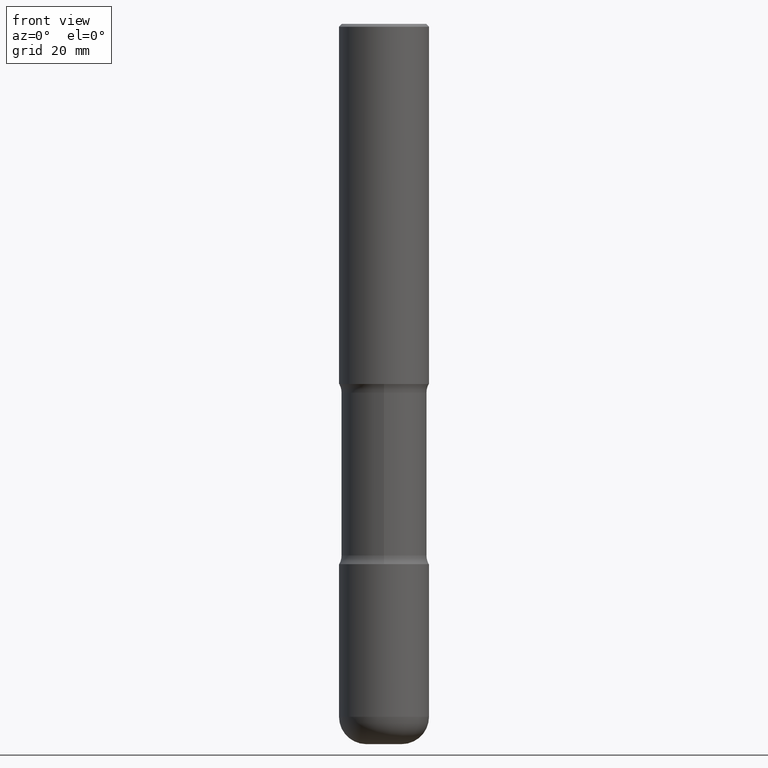
[diagram: clean part render]
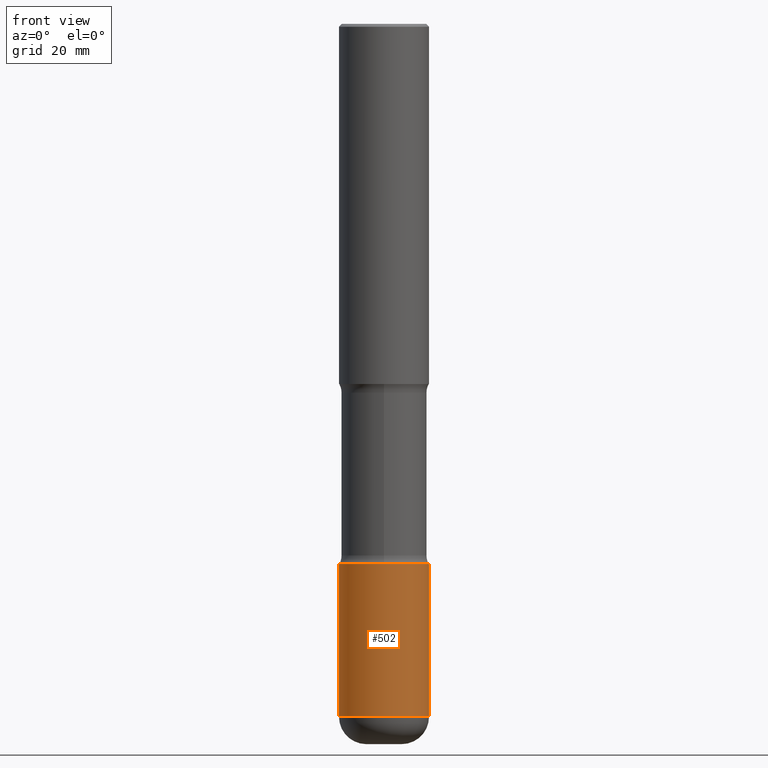
[diagram: same view with one face highlighted and labeled with its STEP entity id]
A machine part, front view. The second image highlights one B-rep face of the part: STEP entity #502.
In plain terms, the highlighted cylindrical surface (partial cylindrical patch) has radius 7.9375 mm, axis along (-0, 0, 1).
Its self-contained STEP definition (entity closure, byte-faithful):
#38 = DIRECTION ( 'NONE',  ( -2.445468806185136877E-29, 3.491481338843145188E-15, 1.000000000000000000 ) ) ;
#84 = ORIENTED_EDGE ( 'NONE', *, *, #196, .F. ) ;
#90 = VERTEX_POINT ( 'NONE', #151 ) ;
#91 = EDGE_CURVE ( 'NONE', #388, #446, #292, .T. ) ;
#96 = CARTESIAN_POINT ( 'NONE',  ( 0.3125000000000001665, -1.897620107661249005E-14, -4.810000000000000497 ) ) ;
#105 = ORIENTED_EDGE ( 'NONE', *, *, #91, .T. ) ;
#114 = VECTOR ( 'NONE', #38, 39.37007874015748143 ) ;
#151 = CARTESIAN_POINT ( 'NONE',  ( -0.3125000000000001665, -1.272309408099834754E-14, -3.749999999999999556 ) ) ;
#156 = DIRECTION ( 'NONE',  ( -2.445468806185136597E-29, 3.491481338843145583E-15, 1.000000000000000000 ) ) ;
#171 = CIRCLE ( 'NONE', #429, 0.3125000000000001665 ) ;
#191 = EDGE_CURVE ( 'NONE', #518, #388, #512, .T. ) ;
#196 = EDGE_CURVE ( 'NONE', #518, #90, #393, .T. ) ;
#209 = CARTESIAN_POINT ( 'NONE',  ( 1.176270495775050811E-28, -1.679402523983553013E-14, -4.810000000000000497 ) ) ;
#225 = DIRECTION ( 'NONE',  ( -2.445468806185136597E-29, 3.491481338843145583E-15, 1.000000000000000000 ) ) ;
#274 = DIRECTION ( 'NONE',  ( 1.000000000000000000, -6.982962677686265133E-15, 0.000000000000000000 ) ) ;
#292 = LINE ( 'NONE', #349, #371 ) ;
#340 = CARTESIAN_POINT ( 'NONE',  ( -0.3125000000000001665, -1.457357919058521389E-14, -4.810000000000000497 ) ) ;
#346 = CYLINDRICAL_SURFACE ( 'NONE', #418, 0.3125000000000001665 ) ;
#349 = CARTESIAN_POINT ( 'NONE',  ( 0.3125000000000001665, -2.182175836776959530E-15, 1.523805242436230636E-29 ) ) ;
#357 = ORIENTED_EDGE ( 'NONE', *, *, #191, .T. ) ;
#371 = VECTOR ( 'NONE', #411, 39.37007874015748143 ) ;
#388 = VERTEX_POINT ( 'NONE', #96 ) ;
#393 = LINE ( 'NONE', #444, #114 ) ;
#395 = AXIS2_PLACEMENT_3D ( 'NONE', #209, #476, #481 ) ;
#401 = FACE_OUTER_BOUND ( 'NONE', #412, .T. ) ;
#411 = DIRECTION ( 'NONE',  ( -2.445468806185136877E-29, 3.491481338843145188E-15, 1.000000000000000000 ) ) ;
#412 = EDGE_LOOP ( 'NONE', ( #84, #357, #105, #437 ) ) ;
#418 = AXIS2_PLACEMENT_3D ( 'NONE', #424, #156, #509 ) ;
#419 = CARTESIAN_POINT ( 'NONE',  ( 0.3125000000000001665, -1.527523085743875418E-14, -3.749999999999999556 ) ) ;
#424 = CARTESIAN_POINT ( 'NONE',  ( 0.000000000000000000, 0.000000000000000000, 0.000000000000000000 ) ) ;
#429 = AXIS2_PLACEMENT_3D ( 'NONE', #455, #225, #274 ) ;
#437 = ORIENTED_EDGE ( 'NONE', *, *, #456, .F. ) ;
#444 = CARTESIAN_POINT ( 'NONE',  ( -0.3125000000000001665, 2.220446049250314264E-15, -1.537167215704658792E-29 ) ) ;
#446 = VERTEX_POINT ( 'NONE', #419 ) ;
#455 = CARTESIAN_POINT ( 'NONE',  ( 9.170508023194261117E-29, -1.309305502066179584E-14, -3.749999999999999556 ) ) ;
#456 = EDGE_CURVE ( 'NONE', #90, #446, #171, .T. ) ;
#476 = DIRECTION ( 'NONE',  ( -2.445468806185136597E-29, 3.491481338843145583E-15, 1.000000000000000000 ) ) ;
#481 = DIRECTION ( 'NONE',  ( 1.000000000000000000, -6.982962677686264344E-15, 0.000000000000000000 ) ) ;
#502 = ADVANCED_FACE ( 'NONE', ( #401 ), #346, .T. ) ;
#509 = DIRECTION ( 'NONE',  ( 1.000000000000000000, -6.982962677686266711E-15, 4.876176775795935232E-29 ) ) ;
#512 = CIRCLE ( 'NONE', #395, 0.3125000000000002220 ) ;
#518 = VERTEX_POINT ( 'NONE', #340 ) ;